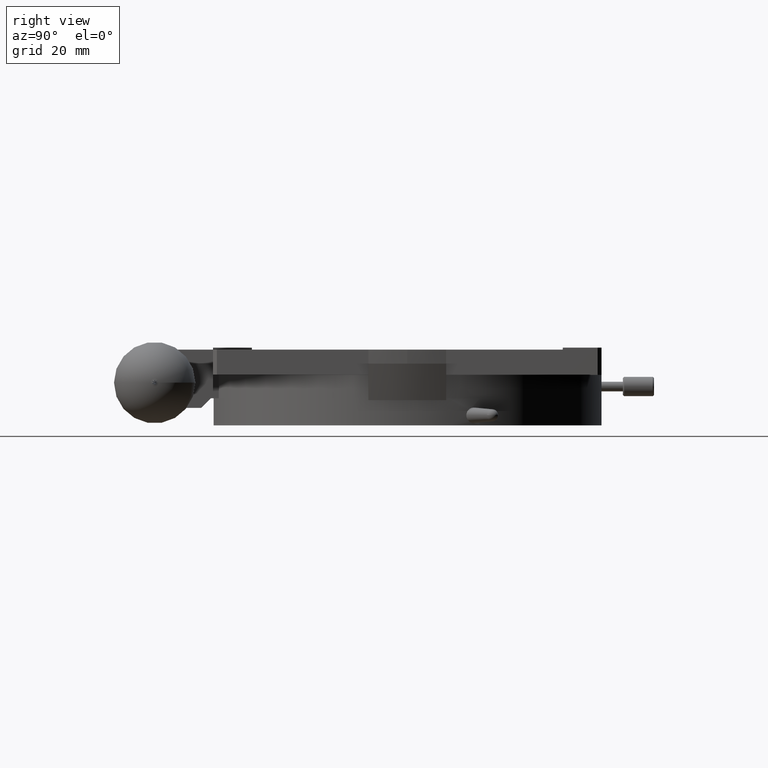
[diagram: clean part render]
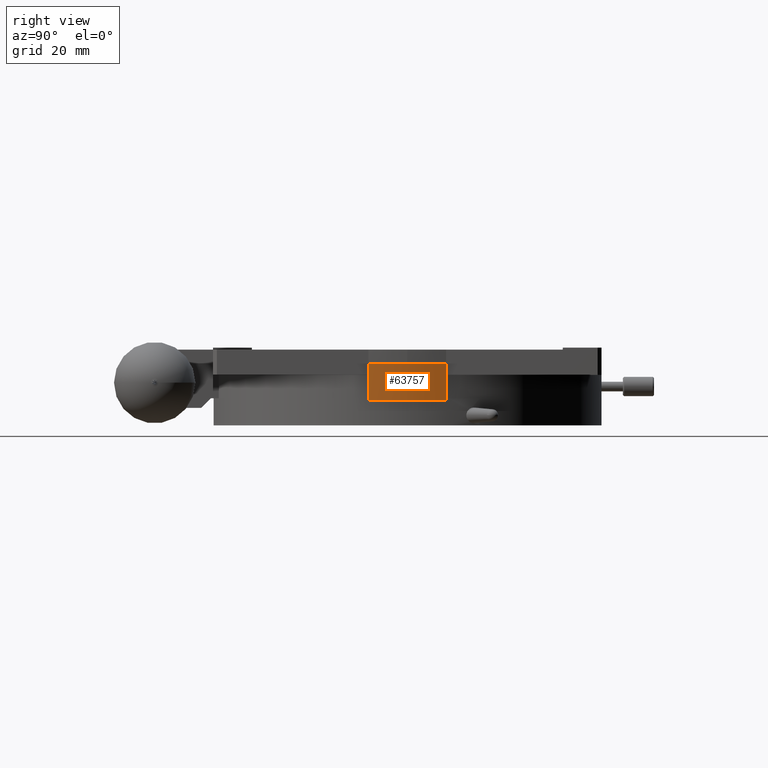
[diagram: same view with one face highlighted and labeled with its STEP entity id]
A machine part, right view. The second image highlights one B-rep face of the part: STEP entity #63757.
In plain terms, the highlighted conical surface has half-angle 14.744 deg.
Its self-contained STEP definition (entity closure, byte-faithful):
#345 = FACE_OUTER_BOUND ( 'NONE', #49474, .T. ) ;
#5364 = CARTESIAN_POINT ( 'NONE',  ( 53.03500000005610815, -10.00200000000000422, -3.614340465146381742 ) ) ;
#6350 = CARTESIAN_POINT ( 'NONE',  ( 53.65637384633546247, -6.707362113435980433, -3.614226929964166946 ) ) ;
#10618 = ORIENTED_EDGE ( 'NONE', *, *, #26682, .F. ) ;
#11288 = CARTESIAN_POINT ( 'NONE',  ( 51.35916264387198993, 9.997999999999999332, -9.872573326286790518 ) ) ;
#11522 = CARTESIAN_POINT ( 'NONE',  ( 53.03500000000001080, 9.997999999999997556, -3.617156868839873862 ) ) ;
#12126 = CARTESIAN_POINT ( 'NONE',  ( 50.51940217381833520, -10.00200000000000067, -13.00000000000000711 ) ) ;
#12277 = DIRECTION ( 'NONE',  ( 0.000000000000000000, -1.000000000000000000, 0.000000000000000000 ) ) ;
#14500 = VERTEX_POINT ( 'NONE', #65682 ) ;
#17489 = B_SPLINE_CURVE_WITH_KNOTS ( 'NONE', 3,
 ( #52432, #17511, #18437, #11522 ),
 .UNSPECIFIED., .F., .F.,
 ( 4, 4 ),
 ( 0.000000000000000000, 1.000000000000000000 ),
 .UNSPECIFIED. ) ;
#17511 = CARTESIAN_POINT ( 'NONE',  ( 53.96984570492607958, 3.350721914606081153, -3.615052195733969409 ) ) ;
#18437 = CARTESIAN_POINT ( 'NONE',  ( 53.65637384633573248, 6.703362113434261360, -3.616104532286919415 ) ) ;
#18611 = EDGE_CURVE ( 'NONE', #59914, #27334, #17489, .T. ) ;
#19140 = EDGE_CURVE ( 'NONE', #32290, #14500, #37045, .T. ) ;
#19180 = AXIS2_PLACEMENT_3D ( 'NONE', #41264, #69386, #33457 ) ;
#21104 = CARTESIAN_POINT ( 'NONE',  ( 53.97000000000002018, -0.002000000002613450730, -3.613999859181019403 ) ) ;
#26682 = EDGE_CURVE ( 'NONE', #65041, #59914, #39730, .T. ) ;
#27334 = VERTEX_POINT ( 'NONE', #82545 ) ;
#31045 = CARTESIAN_POINT ( 'NONE',  ( 52.19739825361312313, 9.997999999999999332, -6.744949923947893389 ) ) ;
#32290 = VERTEX_POINT ( 'NONE', #12126 ) ;
#33205 = ORIENTED_EDGE ( 'NONE', *, *, #18611, .F. ) ;
#33457 = DIRECTION ( 'NONE',  ( 0.000000000000000000, -1.000000000000000000, 0.000000000000000000 ) ) ;
#34536 = ORIENTED_EDGE ( 'NONE', *, *, #50346, .T. ) ;
#37045 = CIRCLE ( 'NONE', #53202, 51.50000000000000711 ) ;
#39360 = CARTESIAN_POINT ( 'NONE',  ( 50.51940217381833520, -10.00200000000000067, -13.00000000000000711 ) ) ;
#39730 = B_SPLINE_CURVE_WITH_KNOTS ( 'NONE', 3,
 ( #90595, #6350, #82303, #61560 ),
 .UNSPECIFIED., .F., .F.,
 ( 4, 4 ),
 ( 0.000000000000000000, 1.000000000000000000 ),
 .UNSPECIFIED. ) ;
#41198 = CARTESIAN_POINT ( 'NONE',  ( 51.35863579941840129, -10.00200000000000067, -9.871634796348956797 ) ) ;
#41264 = CARTESIAN_POINT ( 'NONE',  ( 0.000000000000000000, 0.000000000000000000, -3.557683858336097238 ) ) ;
#48044 = ORIENTED_EDGE ( 'NONE', *, *, #65718, .T. ) ;
#49474 = EDGE_LOOP ( 'NONE', ( #10618, #34536, #75689, #48044, #33205 ) ) ;
#50346 = EDGE_CURVE ( 'NONE', #65041, #32290, #82175, .T. ) ;
#52432 = CARTESIAN_POINT ( 'NONE',  ( 53.97000000000002018, -0.002000000002613450730, -3.613999859181019403 ) ) ;
#53115 = CARTESIAN_POINT ( 'NONE',  ( 50.52019394262060814, 9.997999999999988674, -13.00000000000000711 ) ) ;
#53202 = AXIS2_PLACEMENT_3D ( 'NONE', #83181, #75815, #12277 ) ;
#54461 = B_SPLINE_CURVE_WITH_KNOTS ( 'NONE', 3,
 ( #53115, #11288, #31045, #81247 ),
 .UNSPECIFIED., .F., .F.,
 ( 4, 4 ),
 ( 1.734723475976807094E-18, 0.009714010229055297652 ),
 .UNSPECIFIED. ) ;
#59914 = VERTEX_POINT ( 'NONE', #21104 ) ;
#61560 = CARTESIAN_POINT ( 'NONE',  ( 53.97000000000002018, -0.002000000002613450730, -3.613999859181019403 ) ) ;
#61866 = CARTESIAN_POINT ( 'NONE',  ( 53.03500000005610815, -10.00200000000000422, -3.614340465146381742 ) ) ;
#63757 = ADVANCED_FACE ( 'NONE', ( #345 ), #67661, .T. ) ;
#65041 = VERTEX_POINT ( 'NONE', #61866 ) ;
#65682 = CARTESIAN_POINT ( 'NONE',  ( 50.52019394262060814, 9.997999999999988674, -13.00000000000000711 ) ) ;
#65718 = EDGE_CURVE ( 'NONE', #14500, #27334, #54461, .T. ) ;
#67661 = CONICAL_SURFACE ( 'NONE', #19180, 53.98482003727998091, 0.2573237149710888572 ) ;
#69386 = DIRECTION ( 'NONE',  ( 0.000000000000000000, 0.000000000000000000, 1.000000000000000000 ) ) ;
#75689 = ORIENTED_EDGE ( 'NONE', *, *, #19140, .T. ) ;
#75815 = DIRECTION ( 'NONE',  ( 0.000000000000000000, 0.000000000000000000, 1.000000000000000000 ) ) ;
#81247 = CARTESIAN_POINT ( 'NONE',  ( 53.03500000000001080, 9.997999999999997556, -3.617156868839873862 ) ) ;
#82175 = B_SPLINE_CURVE_WITH_KNOTS ( 'NONE', 3,
 ( #5364, #82678, #41198, #39360 ),
 .UNSPECIFIED., .F., .F.,
 ( 4, 4 ),
 ( 2.167311449191390976E-13, 0.009716935593682449884 ),
 .UNSPECIFIED. ) ;
#82303 = CARTESIAN_POINT ( 'NONE',  ( 53.96984570492580957, -3.354721914609571698, -3.614113394572593396 ) ) ;
#82545 = CARTESIAN_POINT ( 'NONE',  ( 53.03500000000001080, 9.997999999999997556, -3.617156868839873862 ) ) ;
#82678 = CARTESIAN_POINT ( 'NONE',  ( 52.19713527448147516, -10.00200000000000067, -6.743072576719107758 ) ) ;
#83181 = CARTESIAN_POINT ( 'NONE',  ( 0.000000000000000000, 0.000000000000000000, -13.00000000000001066 ) ) ;
#90595 = CARTESIAN_POINT ( 'NONE',  ( 53.03500000005610815, -10.00200000000000422, -3.614340465146381742 ) ) ;